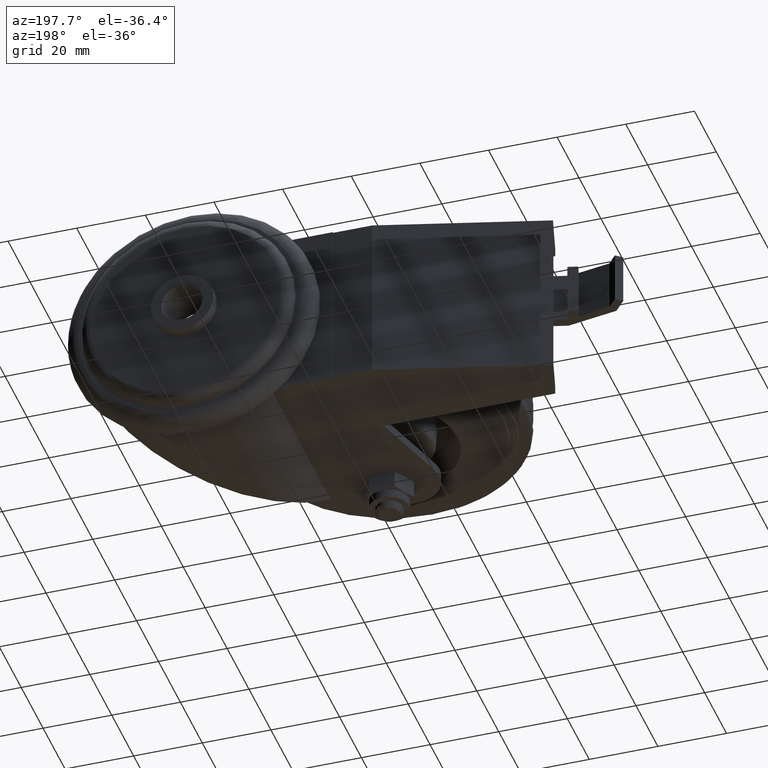
[diagram: clean part render]
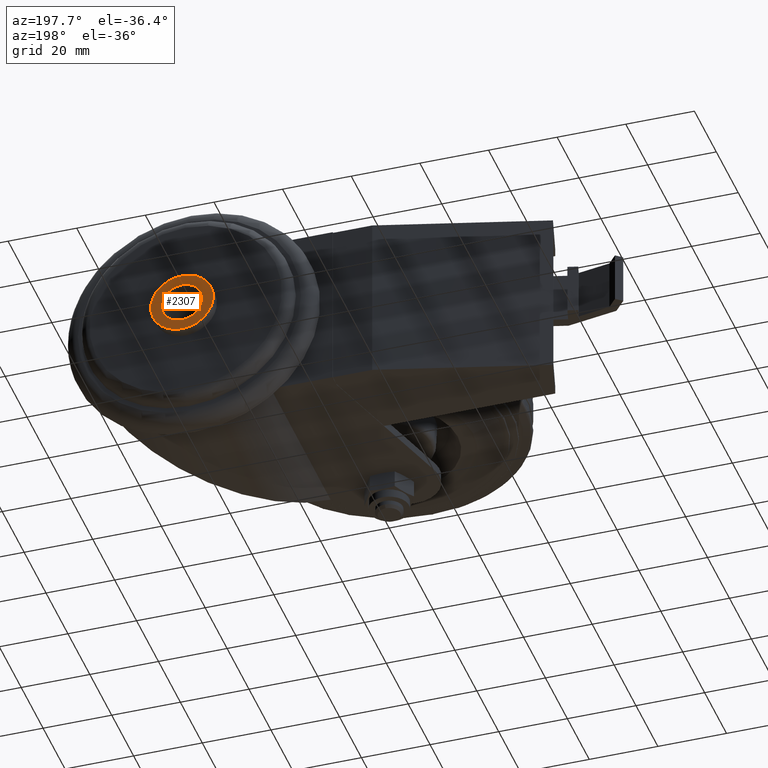
[diagram: same view with one face highlighted and labeled with its STEP entity id]
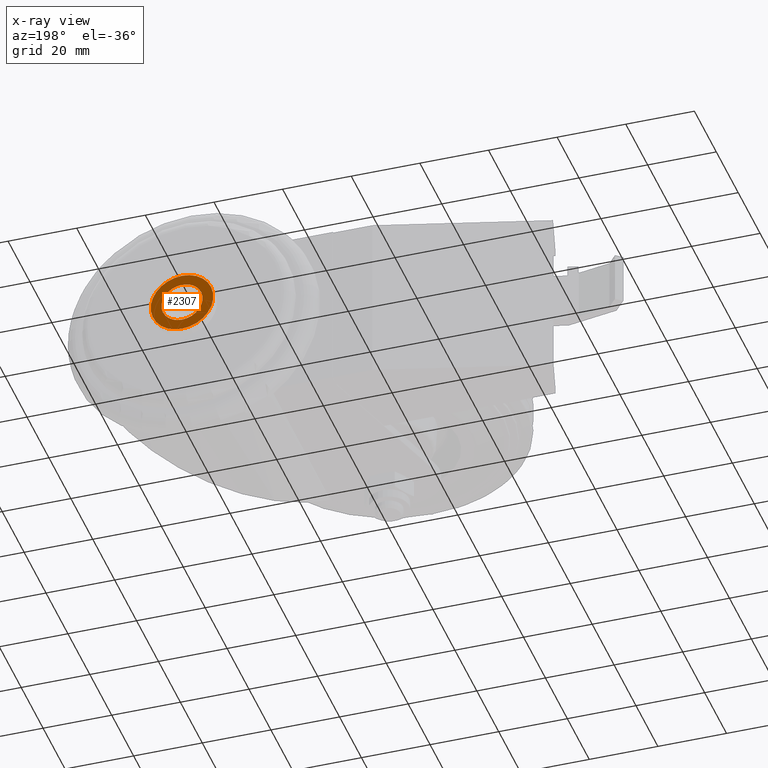
[diagram: x-ray of the same camera — body ghosted, the highlighted face saturated]
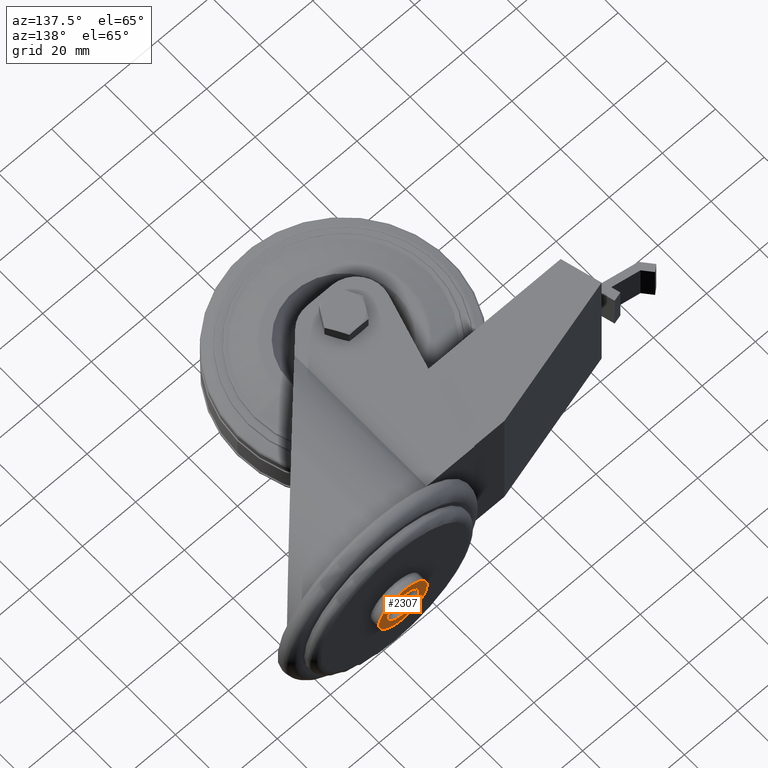
[diagram: same view with one face highlighted and labeled with its STEP entity id]
A machine part, auxiliary view. The second image highlights one B-rep face of the part: STEP entity #2307.
The next image is the same camera in x-ray: the body ghosted, the highlighted face saturated — about 0% of this face is hidden behind the body in this view.
A second angle (auxiliary view) of the same face is appended — the face is thin or edge-on in the first view.
In plain terms, the highlighted planar face has unit normal (0, -1, 0).
Its self-contained STEP definition (entity closure, byte-faithful):
#185=FACE_BOUND('',#483,.T.);
#244=PLANE('',#2592);
#326=FACE_OUTER_BOUND('',#482,.T.);
#482=EDGE_LOOP('',(#1832));
#483=EDGE_LOOP('',(#1833));
#629=CIRCLE('',#2593,9.125);
#630=CIRCLE('',#2594,6.);
#1124=VERTEX_POINT('',#3821);
#1125=VERTEX_POINT('',#3823);
#1374=EDGE_CURVE('',#1124,#1124,#629,.T.);
#1375=EDGE_CURVE('',#1125,#1125,#630,.T.);
#1832=ORIENTED_EDGE('',*,*,#1374,.F.);
#1833=ORIENTED_EDGE('',*,*,#1375,.T.);
#2307=ADVANCED_FACE('',(#326,#185),#244,.F.);
#2592=AXIS2_PLACEMENT_3D('',#3820,#3066,#3067);
#2593=AXIS2_PLACEMENT_3D('',#3822,#3068,#3069);
#2594=AXIS2_PLACEMENT_3D('',#3824,#3070,#3071);
#3066=DIRECTION('center_axis',(0.,-1.,0.));
#3067=DIRECTION('ref_axis',(0.,0.,-1.));
#3068=DIRECTION('center_axis',(0.,-1.,0.));
#3069=DIRECTION('ref_axis',(0.,0.,-1.));
#3070=DIRECTION('center_axis',(0.,-1.,0.));
#3071=DIRECTION('ref_axis',(0.,0.,-1.));
#3820=CARTESIAN_POINT('Origin',(39.,67.,0.));
#3821=CARTESIAN_POINT('',(39.,67.,9.125));
#3822=CARTESIAN_POINT('Origin',(39.,67.,0.));
#3823=CARTESIAN_POINT('',(39.,67.,6.));
#3824=CARTESIAN_POINT('Origin',(39.,67.,0.));